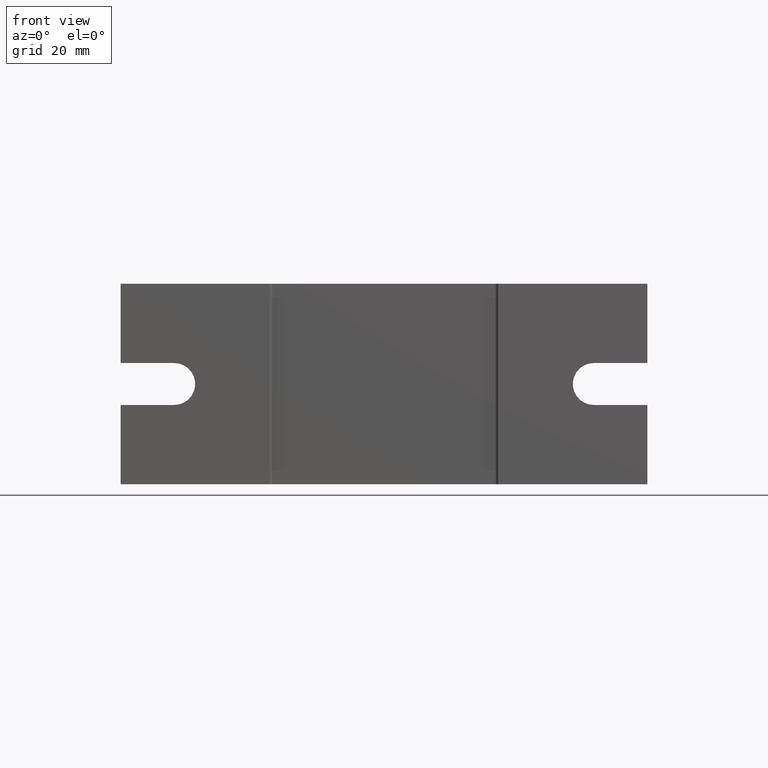
[diagram: clean part render]
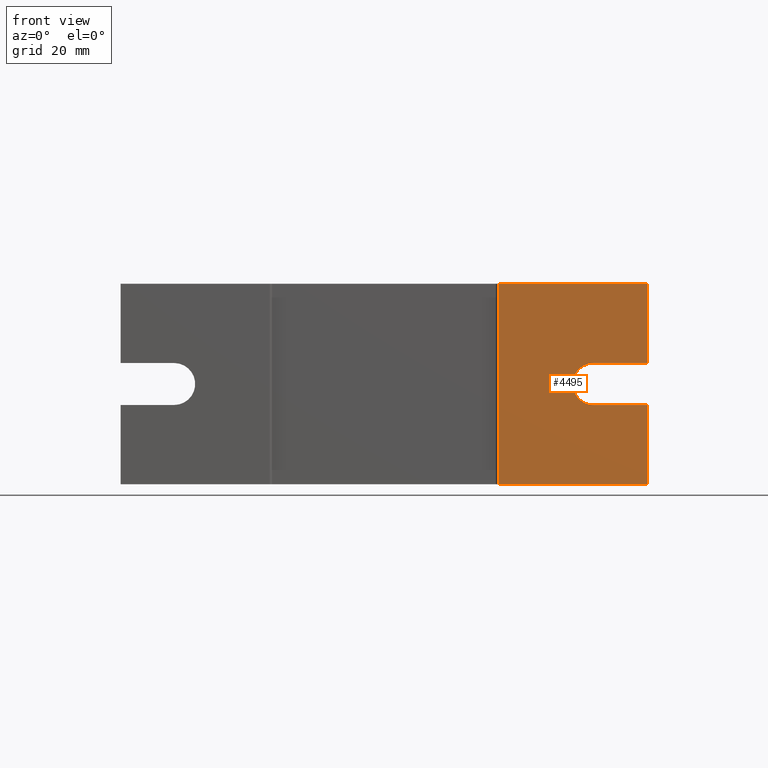
[diagram: same view with one face highlighted and labeled with its STEP entity id]
A machine part, front view. The second image highlights one B-rep face of the part: STEP entity #4495.
In plain terms, the highlighted planar face has unit normal (0, 1, 0).
Its self-contained STEP definition (entity closure, byte-faithful):
#220 = CARTESIAN_POINT ( 'NONE',  ( 56.50000000000000000, -32.50000000000000000, -21.50000000000000000 ) ) ;
#783 = LINE ( 'NONE', #4439, #19618 ) ;
#814 = DIRECTION ( 'NONE',  ( 0.0000000000000000000, 1.000000000000000000, 0.0000000000000000000 ) ) ;
#1352 = VECTOR ( 'NONE', #12007, 1000.000000000000000 ) ;
#1408 = LINE ( 'NONE', #11477, #13220 ) ;
#1577 = DIRECTION ( 'NONE',  ( 1.000000000000000000, 0.0000000000000000000, 0.0000000000000000000 ) ) ;
#1841 = CARTESIAN_POINT ( 'NONE',  ( 45.00000000000000000, -32.50000000000000000, 4.500000000000000000 ) ) ;
#2054 = CARTESIAN_POINT ( 'NONE',  ( 56.50000000000000000, -32.50000000000000000, 21.50000000000000000 ) ) ;
#2223 = EDGE_CURVE ( 'NONE', #7822, #6986, #1408, .T. ) ;
#2649 = EDGE_CURVE ( 'NONE', #4124, #8217, #15574, .T. ) ;
#2743 = CARTESIAN_POINT ( 'NONE',  ( 45.00000000000000000, -32.50000000000000000, -4.500000000000000000 ) ) ;
#3213 = DIRECTION ( 'NONE',  ( 1.000000000000000000, 0.0000000000000000000, 0.0000000000000000000 ) ) ;
#3410 = LINE ( 'NONE', #13447, #11084 ) ;
#3519 = EDGE_CURVE ( 'NONE', #19639, #15989, #9830, .T. ) ;
#3595 = CARTESIAN_POINT ( 'NONE',  ( 56.50000000000000000, -32.50000000000000000, -4.500000000000000000 ) ) ;
#4063 = ORIENTED_EDGE ( 'NONE', *, *, #10171, .F. ) ;
#4124 = VERTEX_POINT ( 'NONE', #3595 ) ;
#4144 = CARTESIAN_POINT ( 'NONE',  ( 45.00000000000000000, -32.50000000000000000, -3.520743267239335000E-015 ) ) ;
#4439 = CARTESIAN_POINT ( 'NONE',  ( 56.50000000000000000, -32.50000000000000000, 21.50000000000000000 ) ) ;
#4495 = ADVANCED_FACE ( 'NONE', ( #8286 ), #8531, .F. ) ;
#5551 = LINE ( 'NONE', #14011, #19198 ) ;
#6548 = VERTEX_POINT ( 'NONE', #1841 ) ;
#6723 = DIRECTION ( 'NONE',  ( 0.0000000000000000000, 1.000000000000000000, 0.0000000000000000000 ) ) ;
#6924 = DIRECTION ( 'NONE',  ( 1.000000000000000000, 0.0000000000000000000, -7.542275982507859600E-017 ) ) ;
#6986 = VERTEX_POINT ( 'NONE', #220 ) ;
#6998 = DIRECTION ( 'NONE',  ( 0.0000000000000000000, 0.0000000000000000000, -1.000000000000000000 ) ) ;
#7001 = CIRCLE ( 'NONE', #7494, 4.500000000000000000 ) ;
#7494 = AXIS2_PLACEMENT_3D ( 'NONE', #4144, #814, #14046 ) ;
#7822 = VERTEX_POINT ( 'NONE', #9097 ) ;
#8217 = VERTEX_POINT ( 'NONE', #2743 ) ;
#8265 = ORIENTED_EDGE ( 'NONE', *, *, #15626, .F. ) ;
#8286 = FACE_OUTER_BOUND ( 'NONE', #18117, .T. ) ;
#8323 = ORIENTED_EDGE ( 'NONE', *, *, #10674, .F. ) ;
#8327 = LINE ( 'NONE', #10223, #1352 ) ;
#8531 = PLANE ( 'NONE',  #18360 ) ;
#8567 = EDGE_CURVE ( 'NONE', #6548, #14148, #5551, .T. ) ;
#9097 = CARTESIAN_POINT ( 'NONE',  ( 24.50000000000000000, -32.50000000000000000, -21.50000000000000000 ) ) ;
#9138 = DIRECTION ( 'NONE',  ( -1.000000000000000000, 0.0000000000000000000, 5.279593187755499500E-016 ) ) ;
#9270 = CARTESIAN_POINT ( 'NONE',  ( 56.50000000000000000, -32.50000000000000000, -4.500000000000000000 ) ) ;
#9830 = LINE ( 'NONE', #18125, #14476 ) ;
#10171 = EDGE_CURVE ( 'NONE', #7822, #19639, #8327, .T. ) ;
#10223 = CARTESIAN_POINT ( 'NONE',  ( 24.50000000000000000, -32.50000000000000000, -21.50000000000000000 ) ) ;
#10674 = EDGE_CURVE ( 'NONE', #15989, #14148, #3410, .T. ) ;
#11084 = VECTOR ( 'NONE', #6998, 1000.000000000000000 ) ;
#11477 = CARTESIAN_POINT ( 'NONE',  ( -56.50000000000000000, -32.50000000000000000, -21.50000000000000000 ) ) ;
#11846 = ORIENTED_EDGE ( 'NONE', *, *, #2649, .T. ) ;
#11958 = ORIENTED_EDGE ( 'NONE', *, *, #12321, .T. ) ;
#12007 = DIRECTION ( 'NONE',  ( 0.0000000000000000000, 0.0000000000000000000, 1.000000000000000000 ) ) ;
#12321 = EDGE_CURVE ( 'NONE', #8217, #6548, #7001, .T. ) ;
#13220 = VECTOR ( 'NONE', #1577, 1000.000000000000000 ) ;
#13447 = CARTESIAN_POINT ( 'NONE',  ( 56.50000000000000000, -32.50000000000000000, 21.50000000000000000 ) ) ;
#14011 = CARTESIAN_POINT ( 'NONE',  ( 56.50000000000000000, -32.50000000000000000, 4.500000000000000000 ) ) ;
#14046 = DIRECTION ( 'NONE',  ( 0.0000000000000000000, 0.0000000000000000000, 1.000000000000000000 ) ) ;
#14148 = VERTEX_POINT ( 'NONE', #17477 ) ;
#14476 = VECTOR ( 'NONE', #3213, 1000.000000000000000 ) ;
#15574 = LINE ( 'NONE', #9270, #21232 ) ;
#15626 = EDGE_CURVE ( 'NONE', #4124, #6986, #783, .T. ) ;
#15989 = VERTEX_POINT ( 'NONE', #2054 ) ;
#16688 = CARTESIAN_POINT ( 'NONE',  ( -56.50000000000000000, -32.50000000000000000, 21.50000000000000000 ) ) ;
#16854 = ORIENTED_EDGE ( 'NONE', *, *, #8567, .T. ) ;
#17477 = CARTESIAN_POINT ( 'NONE',  ( 56.50000000000000000, -32.50000000000000000, 4.500000000000000000 ) ) ;
#17624 = DIRECTION ( 'NONE',  ( 0.0000000000000000000, 0.0000000000000000000, -1.000000000000000000 ) ) ;
#18117 = EDGE_LOOP ( 'NONE', ( #11958, #16854, #8323, #20833, #4063, #19040, #8265, #11846 ) ) ;
#18125 = CARTESIAN_POINT ( 'NONE',  ( -56.50000000000000000, -32.50000000000000000, 21.50000000000000000 ) ) ;
#18342 = DIRECTION ( 'NONE',  ( 0.0000000000000000000, 0.0000000000000000000, 1.000000000000000000 ) ) ;
#18360 = AXIS2_PLACEMENT_3D ( 'NONE', #16688, #6723, #18342 ) ;
#19040 = ORIENTED_EDGE ( 'NONE', *, *, #2223, .T. ) ;
#19198 = VECTOR ( 'NONE', #6924, 1000.000000000000000 ) ;
#19522 = CARTESIAN_POINT ( 'NONE',  ( 24.50000000000000000, -32.50000000000000000, 21.50000000000000000 ) ) ;
#19618 = VECTOR ( 'NONE', #17624, 1000.000000000000000 ) ;
#19639 = VERTEX_POINT ( 'NONE', #19522 ) ;
#20833 = ORIENTED_EDGE ( 'NONE', *, *, #3519, .F. ) ;
#21232 = VECTOR ( 'NONE', #9138, 1000.000000000000000 ) ;